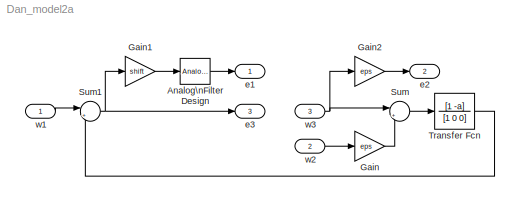
MODEL Dan_model2a
KIND model
BLOCK [Reference] Analog\nFilter Design  REF=dsparch4/Analog\nFilter Design
  N = 2
  Ports = [1, 1]
  Rp = 2
  Rs = 40
  SID = 14
  SourceBlock = dsparch4/Analog\nFilter Design
  SourceType = Analog Filter Design
  Whi = 80
  Wlo = passband
  filttype = Lowpass
  method = Butterworth
BLOCK [Gain] Gain
  Gain = eps
  OutDataTypeStr = Inherit: Inherit via internal rule
  ParamDataTypeStr = Inherit: Inherit via internal rule
  SID = 7
  SaturateOnIntegerOverflow = off
BLOCK [Gain] Gain1
  Gain = shift
  OutDataTypeStr = Inherit: Inherit via internal rule
  ParamDataTypeStr = Inherit: Inherit via internal rule
  SID = 15
  SaturateOnIntegerOverflow = off
BLOCK [Gain] Gain2
  Gain = eps
  OutDataTypeStr = Inherit: Inherit via internal rule
  ParamDataTypeStr = Inherit: Inherit via internal rule
  SID = 11
  SaturateOnIntegerOverflow = off
BLOCK [Sum] Sum
  IconShape = round
  InputSameDT = off
  Inputs = |++
  OutDataTypeStr = Inherit: Inherit via internal rule
  Ports = [2, 1]
  SID = 1
  SaturateOnIntegerOverflow = off
BLOCK [Sum] Sum1
  IconShape = round
  InputSameDT = off
  Inputs = |+-
  OutDataTypeStr = Inherit: Inherit via internal rule
  Ports = [2, 1]
  SID = 6
  SaturateOnIntegerOverflow = off
BLOCK [TransferFcn] Transfer Fcn
  Denominator = [1 0 0]
  Numerator = [1 -a]
  SID = 5
BLOCK [Outport] e1
  IconDisplay = Port number
  SID = 2
BLOCK [Outport] e2
  IconDisplay = Port number
  Port = 2
  SID = 12
BLOCK [Outport] e3
  IconDisplay = Port number
  Port = 3
  SID = 18
BLOCK [Inport] w1
  IconDisplay = Port number
  SID = 3
BLOCK [Inport] w2
  IconDisplay = Port number
  Port = 2
  SID = 8
BLOCK [Inport] w3
  IconDisplay = Port number
  Port = 3
  SID = 17
LINE Analog\nFilter Design:1 -> e1:1
LINE Gain1:1 -> Analog\nFilter Design:1
LINE Gain2:1 -> e2:1
LINE Gain:1 -> Sum:2
NET Sum1:1 -> Gain1:1, e3:1
LINE Sum:1 -> Transfer Fcn:1
LINE Transfer Fcn:1 -> Sum1:2
LINE w1:1 -> Sum1:1
LINE w2:1 -> Gain:1
NET w3:1 -> Gain2:1, Sum:1
note: NET lines group one-source signal fan-out (src -> all destinations, sorted); 1:1 wires keep LINE
